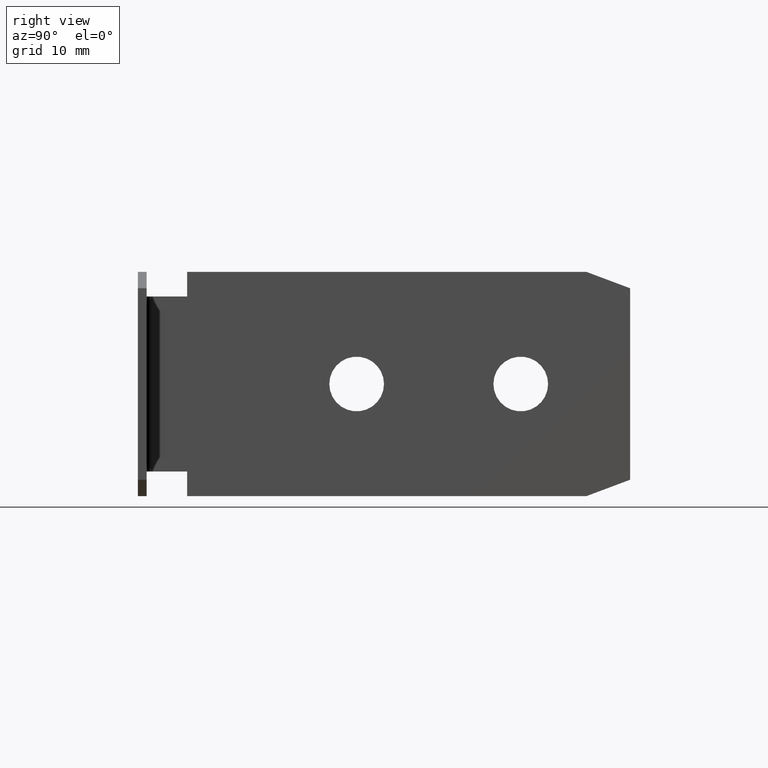
[diagram: clean part render]
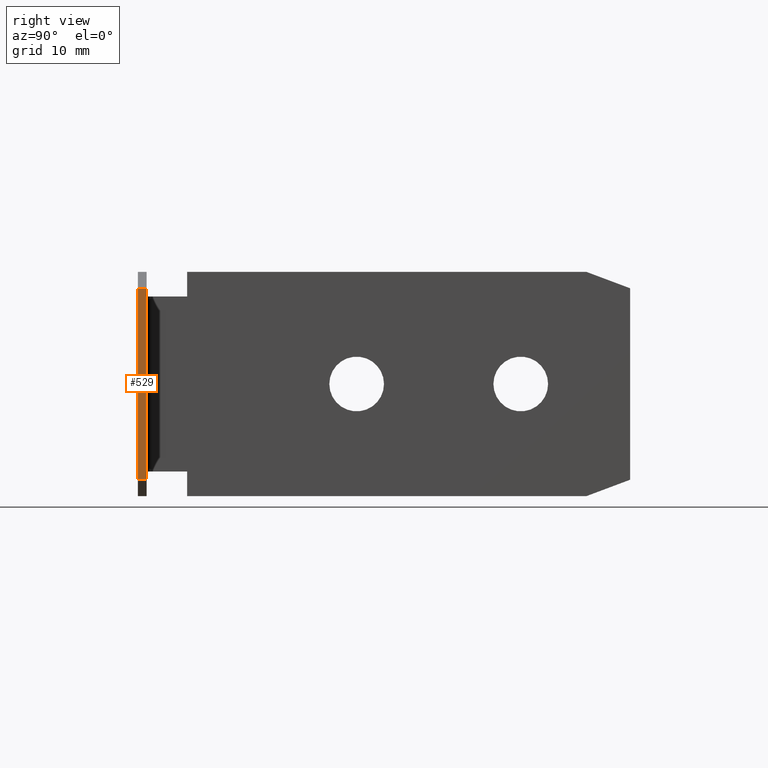
[diagram: same view with one face highlighted and labeled with its STEP entity id]
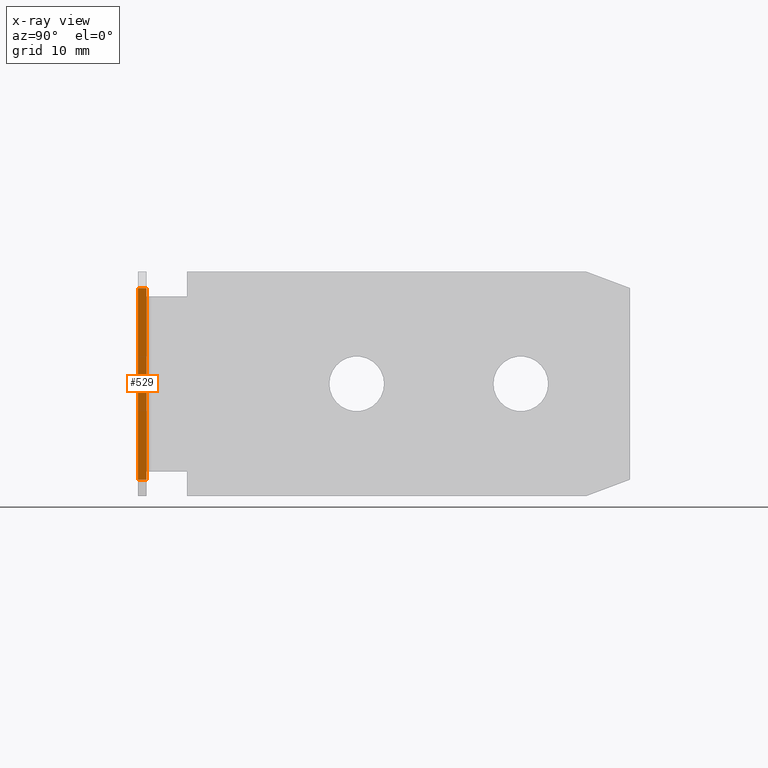
[diagram: x-ray of the same camera — body ghosted, the highlighted face saturated]
A machine part, right view. The second image highlights one B-rep face of the part: STEP entity #529.
The next image is the same camera in x-ray: the body ghosted, the highlighted face saturated — about 0% of this face is hidden behind the body in this view.
In plain terms, the highlighted planar face has unit normal (1, 0, 0).
Its self-contained STEP definition (entity closure, byte-faithful):
#41=PLANE('',#590);
#67=FACE_OUTER_BOUND('',#101,.T.);
#101=EDGE_LOOP('',(#491,#492,#493,#494));
#143=LINE('',#835,#203);
#152=LINE('',#856,#212);
#159=LINE('',#868,#219);
#160=LINE('',#870,#220);
#203=VECTOR('',#686,10.);
#212=VECTOR('',#703,10.);
#219=VECTOR('',#716,10.);
#220=VECTOR('',#719,10.);
#271=VERTEX_POINT('',#832);
#272=VERTEX_POINT('',#834);
#279=VERTEX_POINT('',#853);
#280=VERTEX_POINT('',#855);
#335=EDGE_CURVE('',#271,#272,#143,.T.);
#344=EDGE_CURVE('',#279,#280,#152,.T.);
#351=EDGE_CURVE('',#271,#280,#159,.T.);
#352=EDGE_CURVE('',#279,#272,#160,.T.);
#491=ORIENTED_EDGE('',*,*,#351,.T.);
#492=ORIENTED_EDGE('',*,*,#344,.F.);
#493=ORIENTED_EDGE('',*,*,#352,.T.);
#494=ORIENTED_EDGE('',*,*,#335,.F.);
#529=ADVANCED_FACE('',(#67),#41,.T.);
#590=AXIS2_PLACEMENT_3D('',#875,#726,#727);
#686=DIRECTION('',(0.,0.,1.));
#703=DIRECTION('',(0.,0.,-1.));
#716=DIRECTION('',(0.,1.,0.));
#719=DIRECTION('',(0.,-1.,0.));
#726=DIRECTION('center_axis',(1.,0.,0.));
#727=DIRECTION('ref_axis',(0.,0.,-1.));
#832=CARTESIAN_POINT('',(45.,0.,-8.75));
#834=CARTESIAN_POINT('',(45.,0.,8.75));
#835=CARTESIAN_POINT('',(45.,0.,0.));
#853=CARTESIAN_POINT('',(45.,0.799999999999997,8.75));
#855=CARTESIAN_POINT('',(45.,0.799999999999997,-8.75));
#856=CARTESIAN_POINT('',(45.,0.799999999999997,0.));
#868=CARTESIAN_POINT('',(45.,0.799999999999997,-8.75));
#870=CARTESIAN_POINT('',(45.,0.799999999999997,8.75));
#875=CARTESIAN_POINT('Origin',(45.,0.799999999999997,0.));